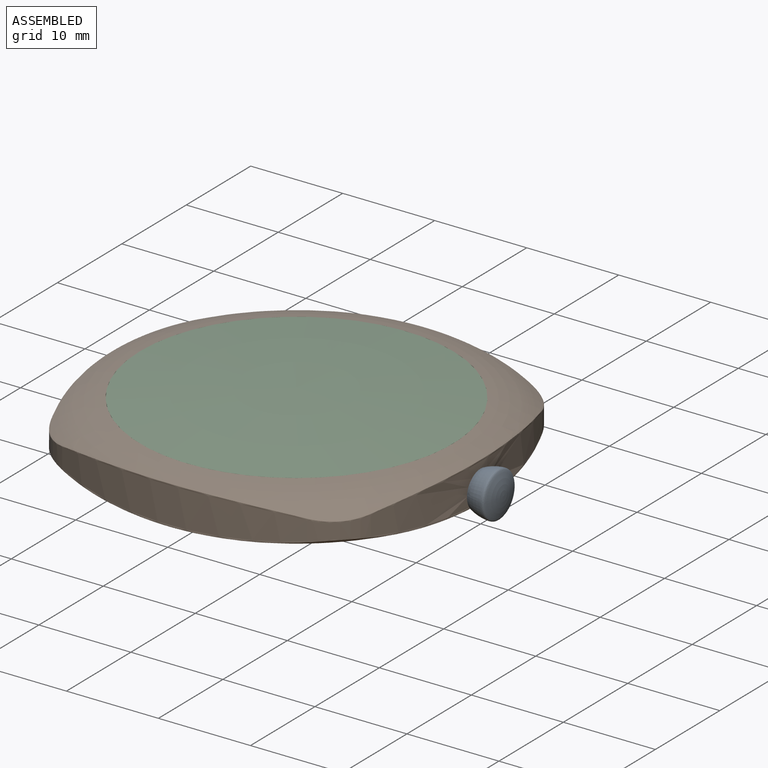
[diagram: assembled view]
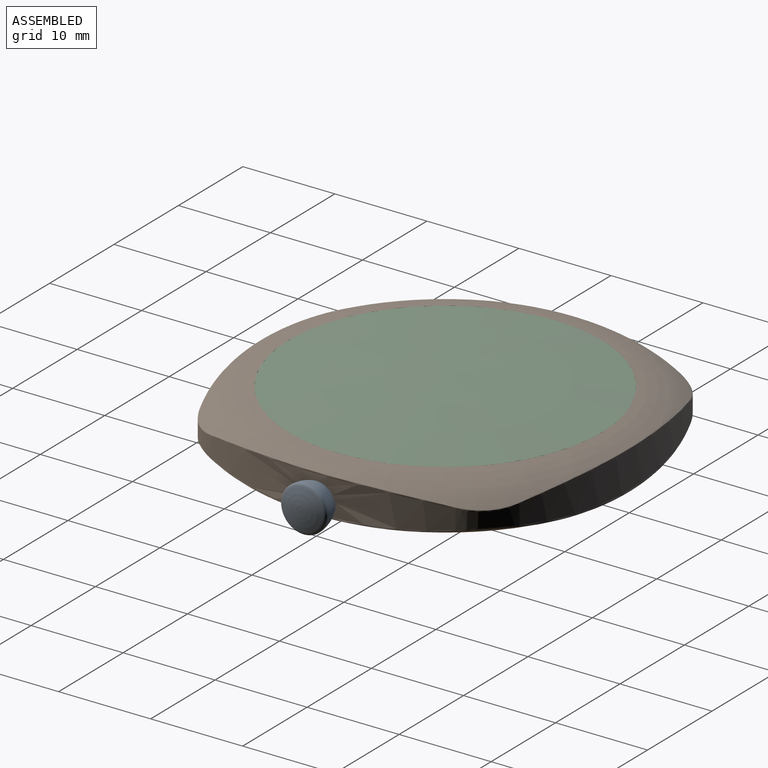
[diagram: assembled view, second angle]
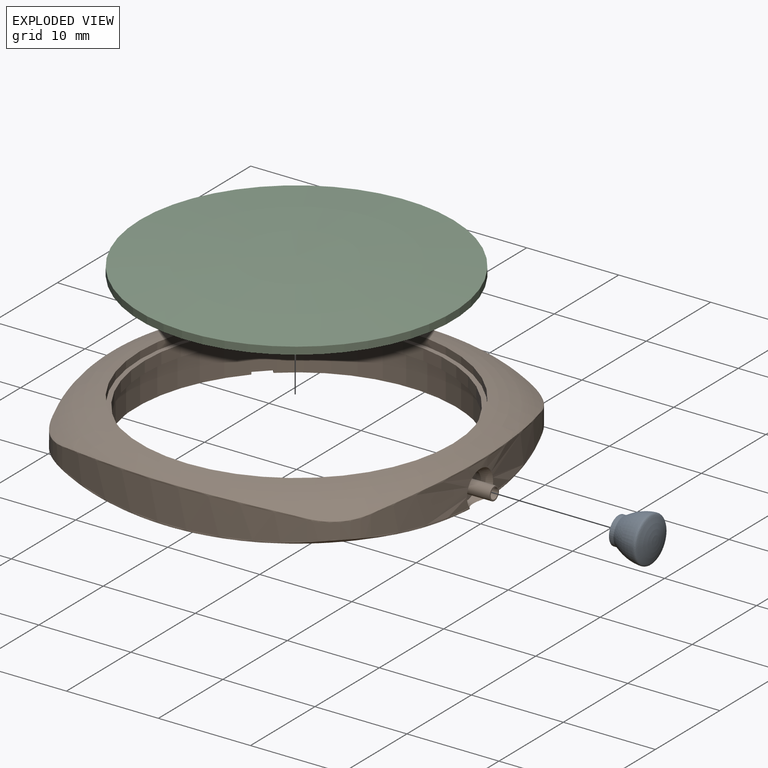
[diagram: exploded view]
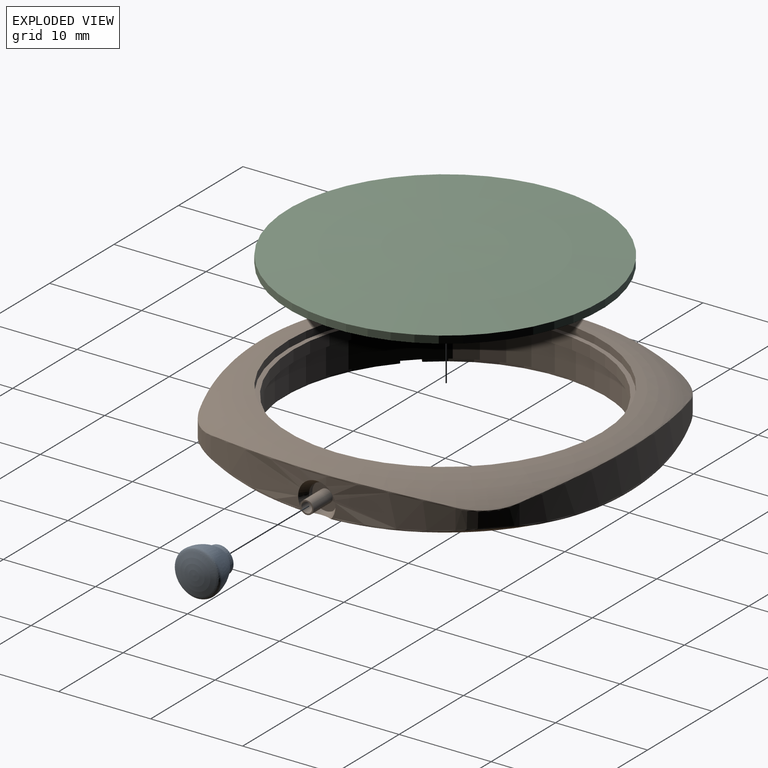
[diagram: exploded view, second angle]
ASSEMBLY  parts=3 mates=2
PART A: 7 faces, bbox 4x5x5 mm
  f0: plane 3x3mm, normal (-1,0,0), area 5.4mm2, adj f1,f4
  f1: cylinder r=1.5mm len=3mm, axis (-1,0,0), area 4.7mm2, adj f0,f2
  f2: revolved ~4.97x4.97mm, area 37.4mm2, adj f1,f6
  f3: sphere r=6.5mm, area 15mm2, adj f6
  f4: cylinder r=0.72mm len=3mm, axis (-1,0,0), area 13.7mm2, adj f0,f5
  f5: plane 1.45x1.45mm, normal (-1,0,0), area 1.7mm2, adj f4
  f6: bspline ~5.03x5.03mm, area 10.7mm2, adj f2,f3
PART B: 72 faces, bbox 44.3x44.3x5.7 mm
  f0: revolved ~44.21x44.21mm, area 226.2mm2, adj f1,f2,f3,f8,f11,f34,f35,f36
  f1: revolved ~25.42x5.99mm, area 41mm2, adj f0,f5,f49,f51
  f2: revolved ~25.42x5.99mm, area 41mm2, adj f0,f6,f48,f58
  f3: revolved ~25.42x5.99mm, area 41mm2, adj f0,f7,f55,f59
  f4: cylinder r=17.5mm len=23.29mm, axis (0,0,-1), area 12.7mm2, adj f11,f12,f52,f54
  f5: cylinder r=17.5mm len=23.29mm, axis (0,0,-1), area 12.7mm2, adj f1,f12,f49,f51
  f6: cylinder r=17.5mm len=23.29mm, axis (0,0,-1), area 12.7mm2, adj f2,f12,f48,f58
  f7: cylinder r=17.5mm len=23.29mm, axis (0,0,-1), area 12.7mm2, adj f3,f12,f55,f59
  f8: bspline ~11.9x2.72mm, area 3.7mm2, adj f0,f20,f41,f42
  f9: revolved ~38x38mm, area 231.7mm2, adj f10,f17
  f10: revolved ~44.31x44.31mm, area 235.8mm2, adj f9,f26,f27,f28,f29,f30,f31,f32
  f11: revolved ~25.42x5.99mm, area 41mm2, adj f0,f4,f52,f54
  f12: plane 35x35mm, normal (0,0,-1), area 62mm2, adj f4,f5,f6,f7,f13,f48,f49,f50
  f13: cylinder r=17mm len=34mm, axis (0,0,-1), area 335.4mm2, adj f12,f14,f45
  f14: plane 34x34mm, normal (0,0,-1), area 52.6mm2, adj f13,f15
  f15: cylinder r=16.5mm len=33mm, axis (0,0,-1), area 129.6mm2, adj f14,f16
  f16: plane 34x34mm, normal (0,0,1), area 52.6mm2, adj f15,f17
  f17: cylinder r=17mm len=34mm, axis (0,0,-1), area 85.5mm2, adj f9,f16
  f18: cylinder r=35mm len=26.58mm, axis (0,0,-1), area 55.9mm2, adj f22,f25,f28,f35
  f19: cylinder r=35mm len=26.58mm, axis (0,0,-1), area 55.9mm2, adj f22,f23,f32,f39
  f20: cylinder r=35mm len=26.58mm, axis (0,0,-1), area 76.5mm2, adj f8,f23,f24,f31,f40,f42
  f21: cylinder r=35mm len=26.58mm, axis (0,0,-1), area 55.9mm2, adj f24,f25,f27,f36
  f22: cylinder r=7.5mm len=4.09mm, axis (0,0,-1), area 12.2mm2, adj f18,f19,f30,f37
  f23: cylinder r=7.5mm len=4.09mm, axis (0,0,-1), area 12.2mm2, adj f19,f20,f33,f41
  f24: cylinder r=7.5mm len=4.09mm, axis (0,0,-1), area 12.2mm2, adj f20,f21,f29,f38
  f25: cylinder r=7.5mm len=4.09mm, axis (0,0,-1), area 12.2mm2, adj f18,f21,f26,f34
  f26: bspline ~4.11x4.11mm, area 1.6mm2, adj f10,f25,f27,f28
  f27: bspline ~26.62x2.75mm, area 8.5mm2, adj f10,f21,f26,f29
  f28: bspline ~26.62x2.75mm, area 8.5mm2, adj f10,f18,f26,f30
  f29: bspline ~4.11x4.11mm, area 1.6mm2, adj f10,f24,f27,f31
  f30: bspline ~4.11x4.11mm, area 1.6mm2, adj f10,f22,f28,f32
  f31: bspline ~26.62x2.75mm, area 8.5mm2, adj f10,f20,f29,f33
  f32: bspline ~26.62x2.75mm, area 8.5mm2, adj f10,f19,f30,f33
  f33: bspline ~4.11x4.11mm, area 1.6mm2, adj f10,f23,f31,f32
  f34: bspline ~4.11x4.11mm, area 1.6mm2, adj f0,f25,f35,f36
  f35: bspline ~26.62x2.75mm, area 8.4mm2, adj f0,f18,f34,f37
  f36: bspline ~26.62x2.75mm, area 8.4mm2, adj f0,f21,f34,f38
  f37: bspline ~4.11x4.11mm, area 1.6mm2, adj f0,f22,f35,f39
  f38: bspline ~4.11x4.11mm, area 1.6mm2, adj f0,f24,f36,f40
  f39: bspline ~26.62x2.75mm, area 8.4mm2, adj f0,f19,f37,f41
  f40: bspline ~15.57x2.75mm, area 3.7mm2, adj f0,f20,f38,f42
  f41: bspline ~4.11x4.11mm, area 1.6mm2, adj f0,f8,f23,f39
  f42: revolved ~4.08x4.08mm, area 10.2mm2, adj f0,f8,f20,f40,f43
  f43: cylinder r=1.5mm len=3mm, axis (1,0,0), area 4.7mm2, adj f42,f44
  f44: plane 3x3mm, normal (1,0,0), area 5.4mm2, adj f43,f46
  f45: cylinder r=0.57mm len=4.51mm, axis (1,0,0), area 16.3mm2, adj f13,f47
  f46: cylinder r=0.72mm len=3mm, axis (-1,0,0), area 13.7mm2, adj f44,f47
  f47: plane 1.45x1.45mm, normal (1,0,0), area 0.6mm2, adj f45,f46
  f48: plane 1.27x1.27mm, normal (-0.71,-0.71,0), area 0.6mm2, adj f0,f2,f6,f12,f50
  f49: plane 1.27x1.27mm, normal (0.71,0.71,0), area 0.6mm2, adj f0,f1,f5,f12,f50
  f50: cylinder r=1mm len=2mm, axis (0,0,-1), area 2.7mm2, adj f0,f12,f48,f49,f60
  f51: plane 1.27x1.27mm, normal (-0.71,0.71,0), area 0.6mm2, adj f0,f1,f5,f12,f53
  f52: plane 1.27x1.27mm, normal (0.71,-0.71,0), area 0.6mm2, adj f0,f4,f11,f12,f53
  f53: cylinder r=1mm len=2mm, axis (0,0,-1), area 2.7mm2, adj f0,f12,f51,f52,f62
  f54: plane 1.27x1.27mm, normal (0.71,0.71,0), area 0.6mm2, adj f0,f4,f11,f12,f56
  f55: plane 1.27x1.27mm, normal (-0.71,-0.71,0), area 0.6mm2, adj f0,f3,f7,f12,f56
  f56: cylinder r=1mm len=2mm, axis (0,0,-1), area 2.7mm2, adj f0,f12,f54,f55,f61
  f57: cylinder r=1mm len=2mm, axis (0,0,-1), area 2.7mm2, adj f0,f12,f58,f59,f63
  f58: plane 1.27x1.27mm, normal (-0.71,0.71,0), area 0.6mm2, adj f0,f2,f6,f12,f57
  f59: plane 1.27x1.27mm, normal (0.71,-0.71,0), area 0.6mm2, adj f0,f3,f7,f12,f57
  f60: plane 2x2mm, normal (0,0,-1), area 2mm2, adj f50,f70
  f61: plane 2x2mm, normal (0,0,-1), area 2mm2, adj f56,f68
  f62: plane 2x2mm, normal (0,0,-1), area 2mm2, adj f53,f66
  f63: plane 2x2mm, normal (0,0,-1), area 2mm2, adj f57,f64
  f64: cylinder r=0.6mm len=2mm, axis (0,0,-1), area 7.5mm2, adj f63,f65
  f65: plane 1.2x1.2mm, normal (0,0,-1), area 1.1mm2, adj f64
  f66: cylinder r=0.6mm len=2mm, axis (0,0,-1), area 7.5mm2, adj f62,f67
  f67: plane 1.2x1.2mm, normal (0,0,-1), area 1.1mm2, adj f66
  f68: cylinder r=0.6mm len=2mm, axis (0,0,-1), area 7.5mm2, adj f61,f69
  f69: plane 1.2x1.2mm, normal (0,0,-1), area 1.1mm2, adj f68
  f70: cylinder r=0.6mm len=2mm, axis (0,0,-1), area 7.5mm2, adj f60,f71
  f71: plane 1.2x1.2mm, normal (0,0,-1), area 1.1mm2, adj f70
PART C: 3 faces, bbox 34x34x1.8 mm
  f0: plane 34x34mm, normal (0,0,-1), area 907.9mm2, adj f2
  f1: sphere r=145mm, area 911.1mm2, adj f2
  f2: cylinder r=17mm len=34mm, axis (0,0,-1), area 85.5mm2, adj f0,f1
PLACE A t=(18.5,0.01,-0.8)mm
PLACE B t=(0,0.01,-2.8)mm
PLACE C t=(0,0.01,2.1)mm
MATE fastened C.f2 <-> B.f4  axis (0,0,-1) through (0,0.01,2.1)mm
MATE revolute A.f1 <-> B.f43  axis (-1,0,0) through (18.5,0.01,-0.8)mm
